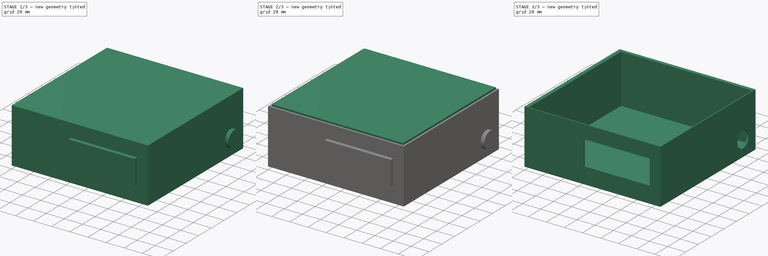
[diagram: build sequence overview — one tinted view per stage of 3, left to right]
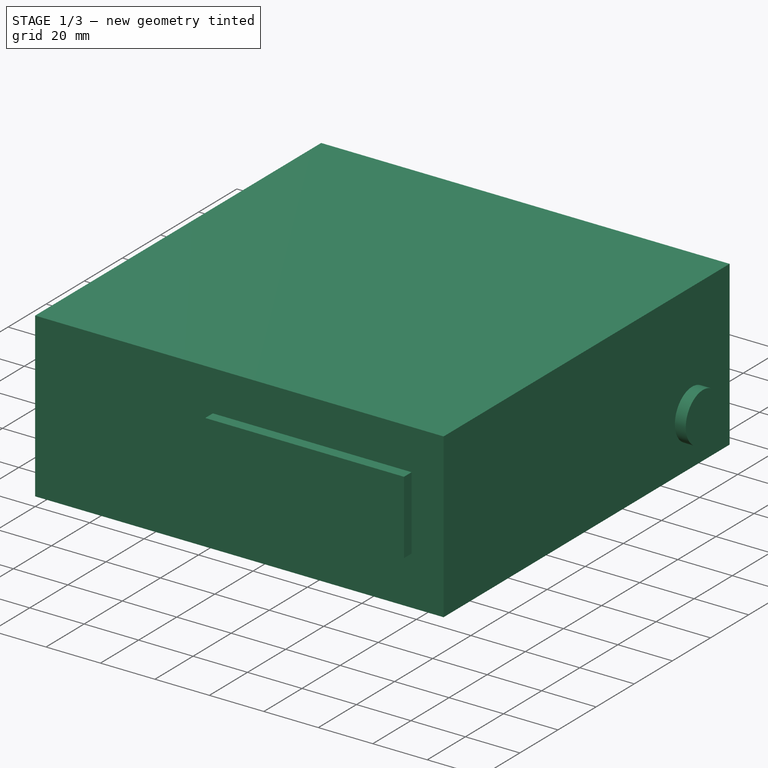
[diagram: stage 1 of 3 — iso view after this stage's code; geometry added in this stage tinted green]
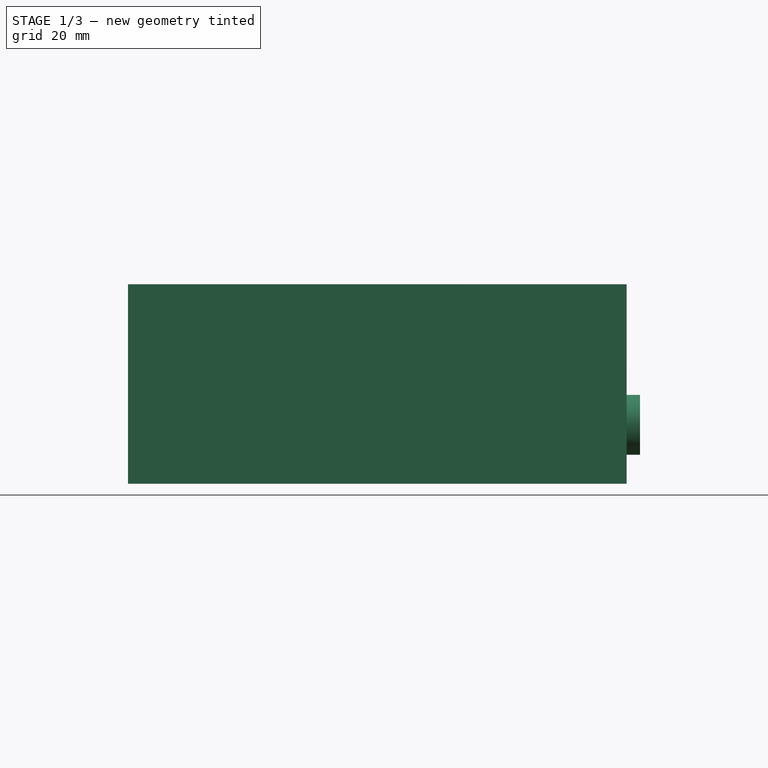
[diagram: stage 1 of 3 — front view after this stage's code; geometry added in this stage tinted green]
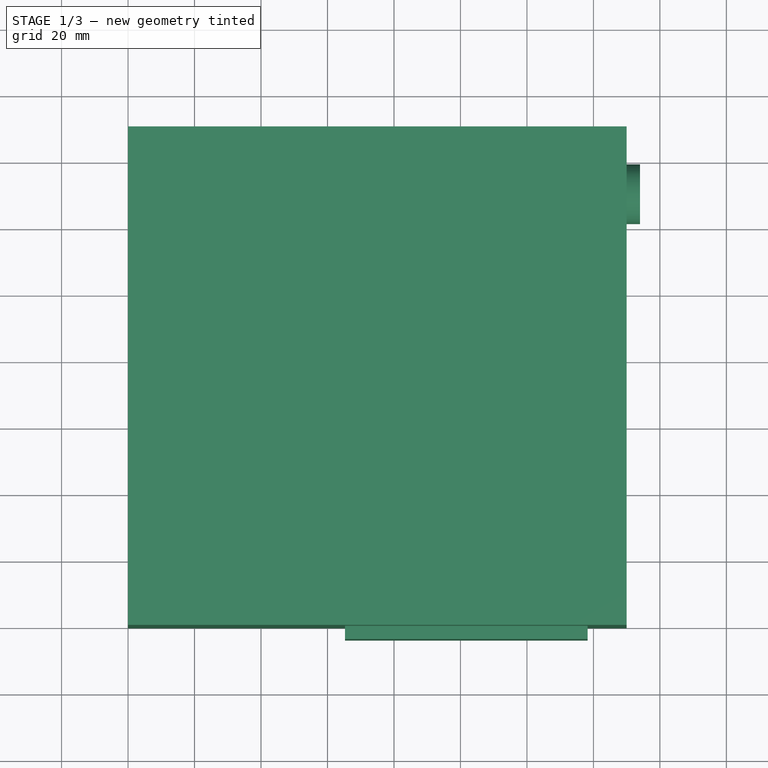
[diagram: stage 1 of 3 — top view after this stage's code; geometry added in this stage tinted green]
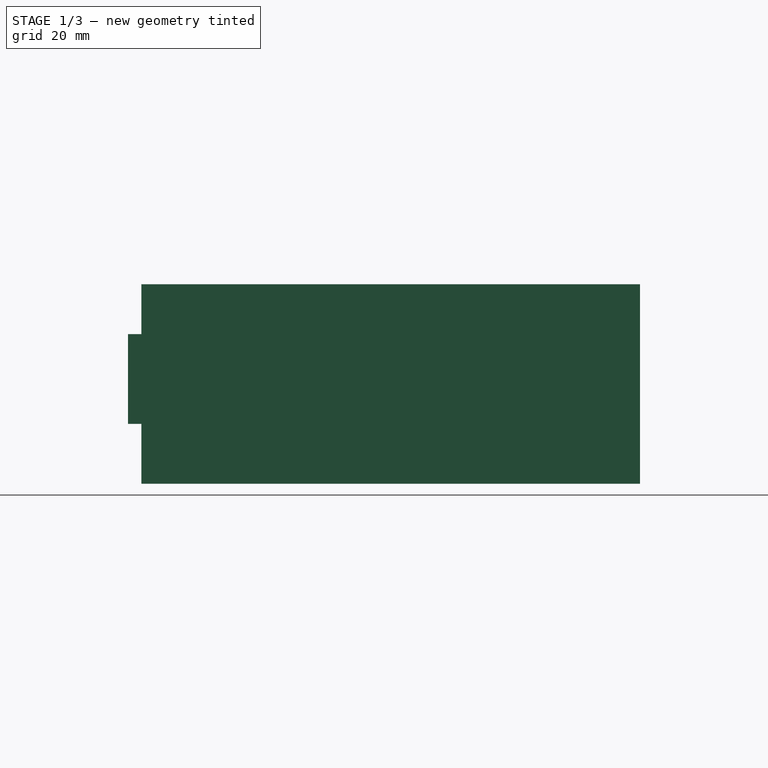
[diagram: stage 1 of 3 — right view after this stage's code; geometry added in this stage tinted green]
FCSTD DOCUMENT  (FreeCAD 0.17R13541 (Git))
Label: BaseCajaProyecto
License: All rights reserved
LicenseURL: http://en.wikipedia.org/wiki/All_rights_reserved
objects: Part::Box×2, Part::Cut×2, Sketcher::SketchObject×2, Part::Extrusion×2, Drawing::FeatureViewPart×2, Part::Fuse×1, Part::Chamfer×1, Drawing::FeaturePage×1
note: 10 computed .brp shape members not serialized (recipe doc carries the construction recipe); baked Part::Feature solids carry a one-line shape summary decoded from their .brp

FEATURE [Part::Box] Box001  label="Cubo001"
  AttacherType = Attacher::AttachEngine3D
  Height = 60
  Length = 150
  Width = 150
FEATURE [Sketcher::SketchObject] Sketch001
  MapMode = 5
  Placement = pos=(150,0,0) rot=(0.57735,0.57735,0.57735;2.0944rad)
  sketch-geometry (1):
    g0: Circle CenterX=129.312 CenterY=12.7282 CenterZ=0 NormalX=0 NormalY=0 NormalZ=1 AngleXU=0 Radius=9
  constraints (1):
    c: Radius(g0) = 9
FEATURE [Part::Extrusion] Extrude001  label="ConexionAlimentacion"
  Base = -> Sketch001
  Dir = (1,0,0)
  DirMode = 2
  FaceMakerClass = Part::FaceMakerBullseye
  LengthFwd = 10
  LengthRev = 0
  Placement = pos=(-6,1,5) rot=(0,0,1;0rad)
  Solid = true
  Symmetric = false
FEATURE [Sketcher::SketchObject] Sketch
  MapMode = 5
  Placement = pos=(0,0,0) rot=(1,0,0;1.5708rad)
  sketch-geometry (4):
    g0: LineSegment StartX=65.2534 StartY=44.9971 StartZ=0 EndX=138.253 EndY=44.9971 EndZ=0
    g1: LineSegment StartX=138.253 StartY=44.9971 StartZ=0 EndX=138.253 EndY=17.9971 EndZ=0
    g2: LineSegment StartX=138.253 StartY=17.9971 StartZ=0 EndX=65.2534 EndY=17.9971 EndZ=0
    g3: LineSegment StartX=65.2534 StartY=17.9971 StartZ=0 EndX=65.2534 EndY=44.9971 EndZ=0
  constraints (10):
    c: Coincident(g0,g1)
    c: Coincident(g1,g2)
    c: Coincident(g2,g3)
    c: Coincident(g3,g0)
    c: Horizontal(g0)
    c: Horizontal(g2)
    c: Vertical(g1)
    c: Vertical(g3)
    c: DistanceX(g2,g2) = 73
    c: DistanceY(g1,g1) = 27
FEATURE [Part::Extrusion] Extrude  label="LCD"
  Base = -> Sketch
  Dir = (0,-1,0)
  DirMode = 2
  FaceMakerClass = Part::FaceMakerBullseye
  LengthFwd = 10
  LengthRev = 0
  Placement = pos=(0,6,0) rot=(0,0,1;0rad)
  Solid = true
  Symmetric = false
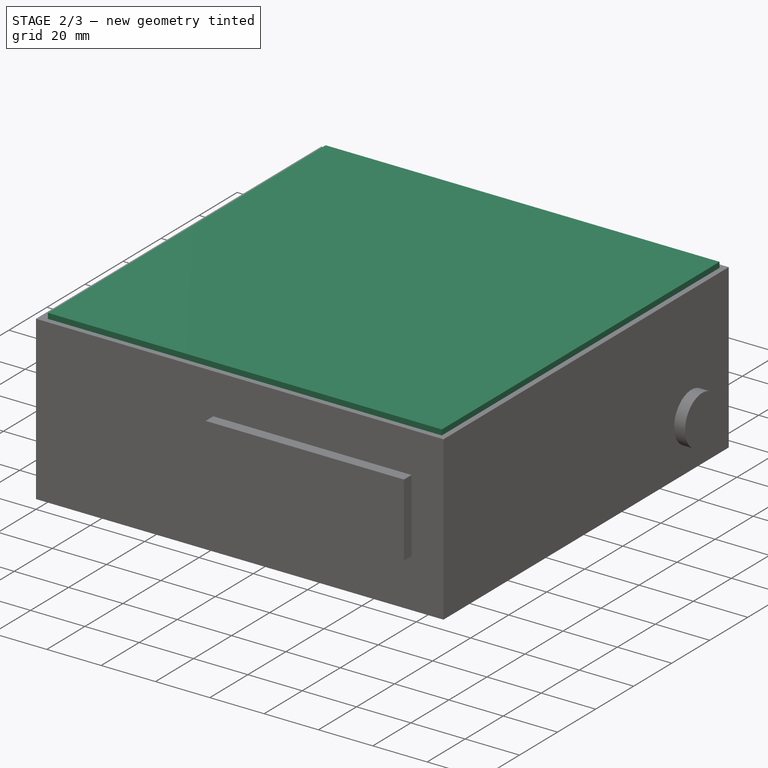
[diagram: stage 2 of 3 — iso view after this stage's code; geometry added in this stage tinted green]
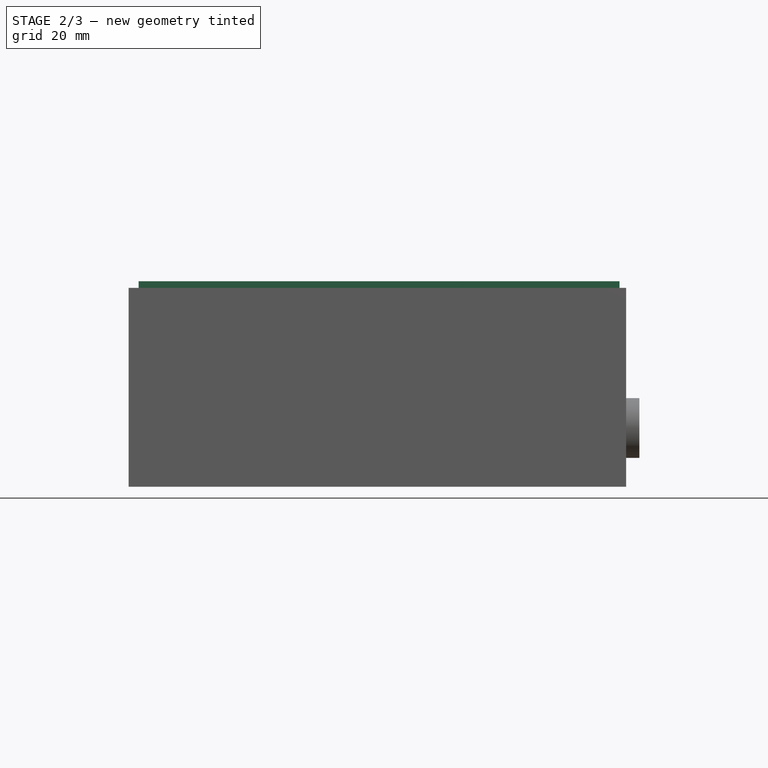
[diagram: stage 2 of 3 — front view after this stage's code; geometry added in this stage tinted green]
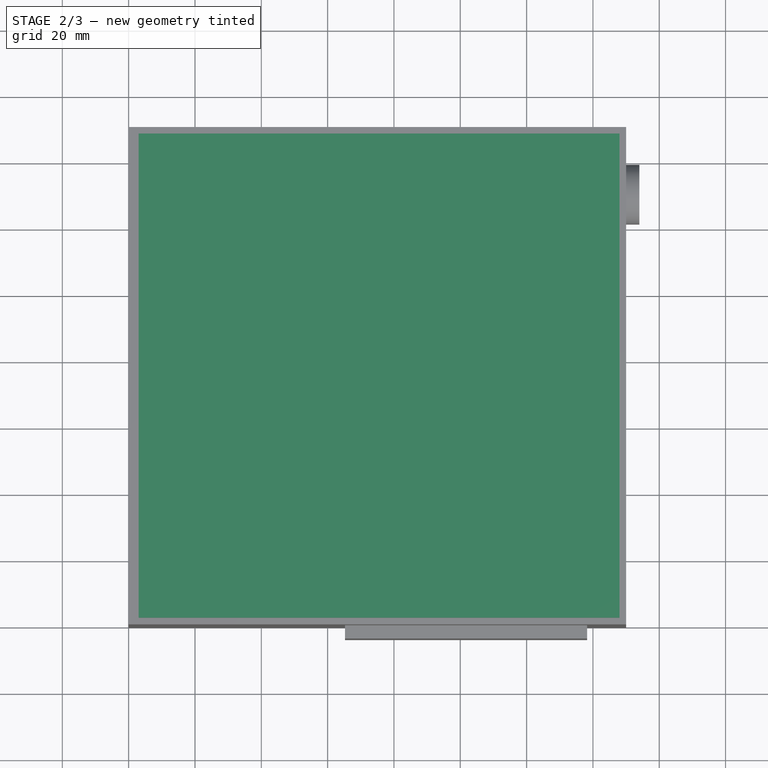
[diagram: stage 2 of 3 — top view after this stage's code; geometry added in this stage tinted green]
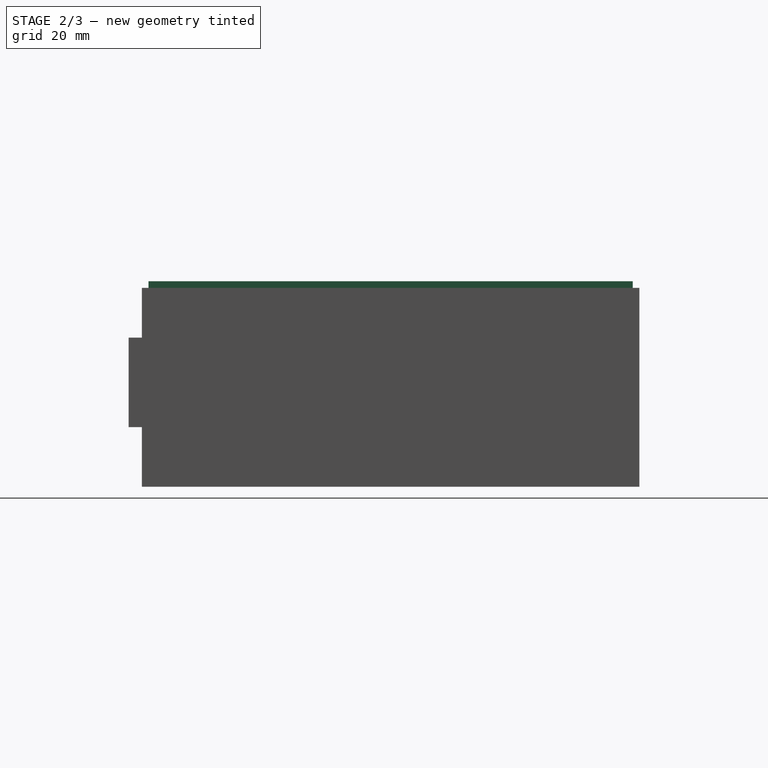
[diagram: stage 2 of 3 — right view after this stage's code; geometry added in this stage tinted green]
FEATURE [Part::Box] Box  label="Cubo"
  AttacherType = Attacher::AttachEngine3D
  Height = 57
  Length = 145
  Placement = pos=(3,2,5) rot=(0,0,1;0rad)
  Width = 146
FEATURE [Part::Fuse] Fusion
  Base = -> Extrude
  Tool = -> Extrude001
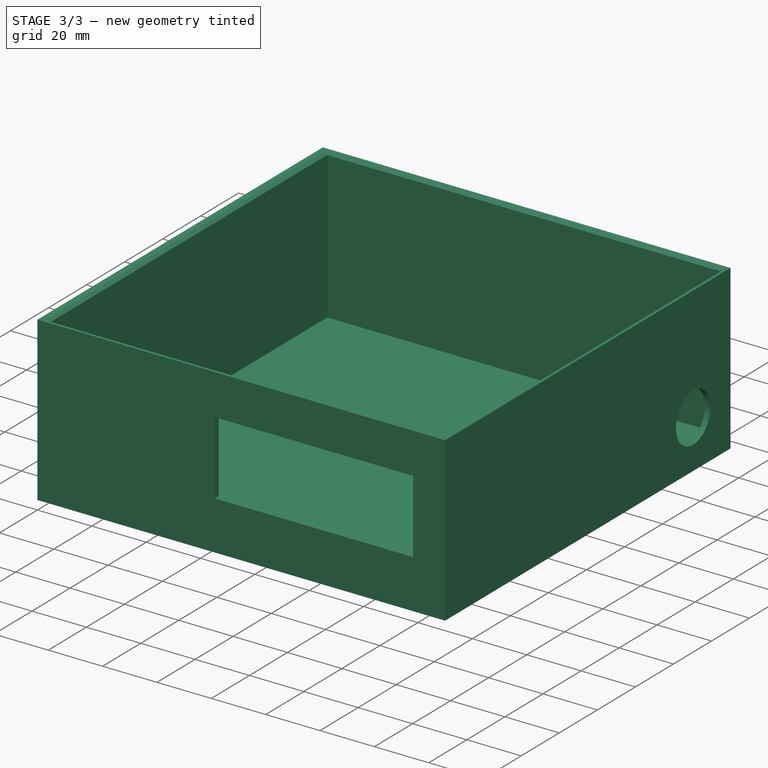
[diagram: stage 3 of 3 — iso view after this stage's code; geometry added in this stage tinted green]
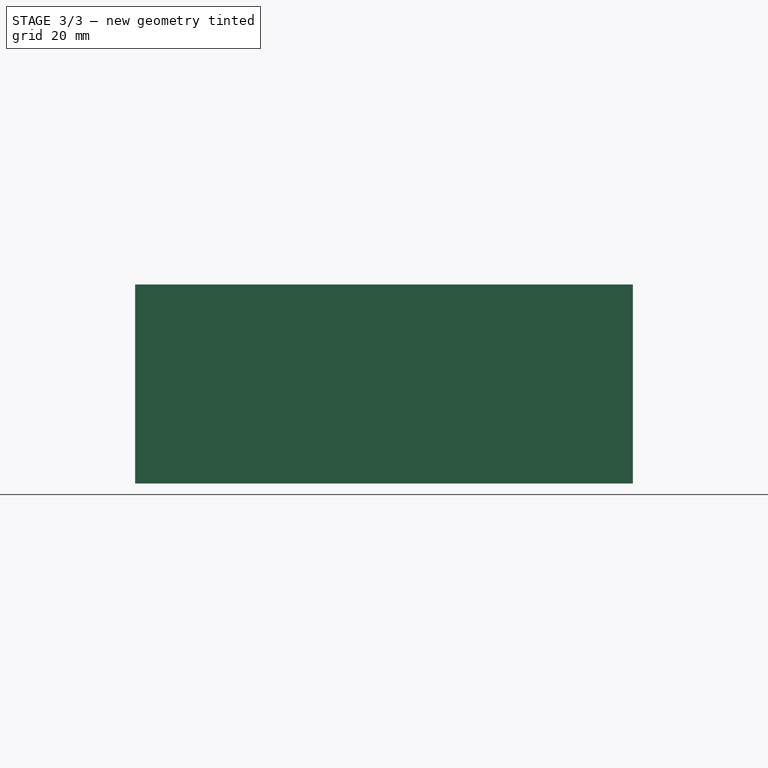
[diagram: stage 3 of 3 — front view after this stage's code; geometry added in this stage tinted green]
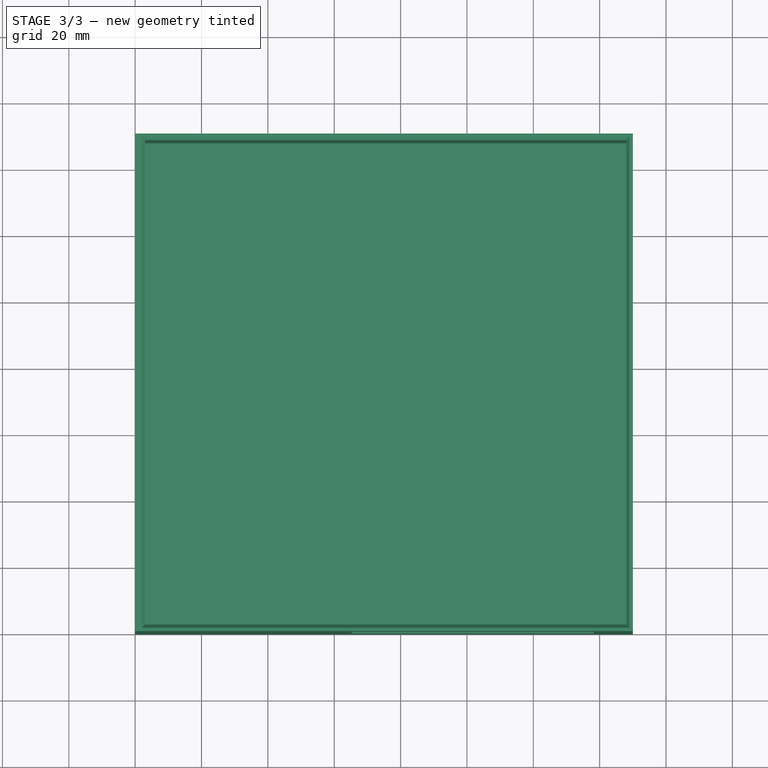
[diagram: stage 3 of 3 — top view after this stage's code; geometry added in this stage tinted green]
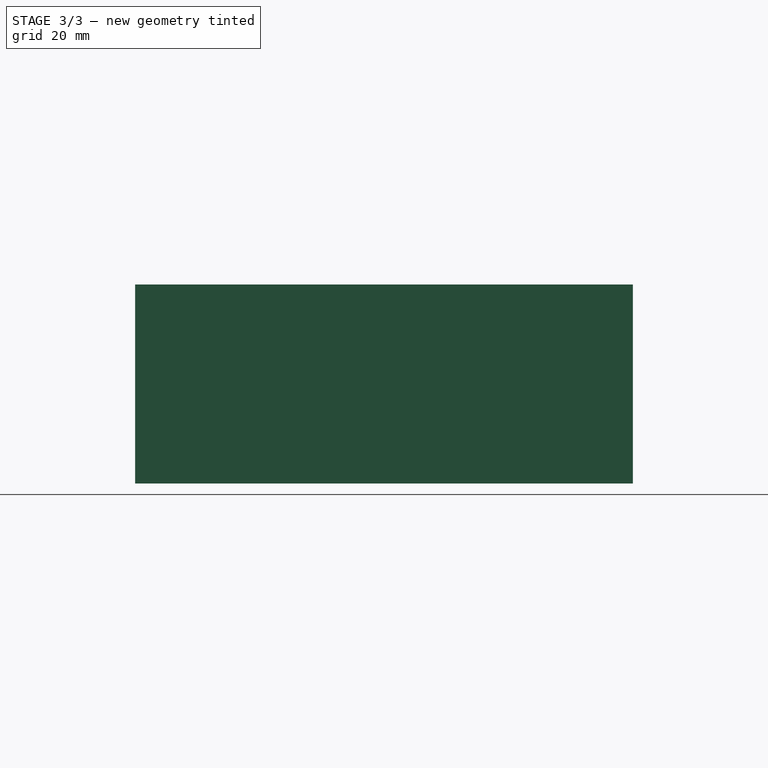
[diagram: stage 3 of 3 — right view after this stage's code; geometry added in this stage tinted green]
FEATURE [Part::Cut] Cut
  Base = -> Box001
  Tool = -> Box
FEATURE [Part::Cut] Cut001  label="BaseCaja001"
  Base = -> Cut
  Tool = -> Fusion
FEATURE [Part::Chamfer] Chamfer001  label="BaseCaja"
  Base = -> Cut001
  Edges = 4 edges r=1: [Edge14,Edge15,Edge16,Edge17]
FEATURE [Drawing::FeatureViewPart] Ortho002  label="Ortho_1_1"
  Direction = (0.68125,-0.68125,0.267949)
  HiddenWidth = 0.15
  LineWidth = 0.35
  Rotation = 180
  Scale = 0.7
  ShowHiddenLines = false
  ShowSmoothLines = false
  Source = -> Chamfer001
  Tolerance = 0.05
  ViewResult = <blob: 2308 chars omitted>
  Visible = false
  X = 227.42
  Y = 127.565
FEATURE [Drawing::FeatureViewPart] Ortho  label="Ortho_0_0"
  Direction = (0,-1,0)
  HiddenWidth = 0.15
  LineWidth = 0.35
  Rotation = 90
  ShowHiddenLines = false
  ShowSmoothLines = false
  Source = -> Chamfer001
  Tolerance = 0.05
  ViewResult = <g id="Ortho_0_0"\n   transform="rotate(90,43.3333,264.667) translate(43.3333,264.667) scale(1,1)"\n  >\n<g   fill="none"\n   stroke="rgb(0, 0, 0)"\n   stroke-linecap="butt"\n   stroke-linejoin="miter"\n   stroke-width="0.350000"\n   transform="scale(1,-1)"\n  >\n<path id= "1" d=" M -60 0 L -60 150 " />\n<path id= "2" d=" M 0 0 L -60 0 " />\n<path id= "3" d=" M 0 0 L 0 150 " />\n<path id= "4" d=" M 0 150 L -60 150 " />\n<path id= "5" d=" M -44.9971 65.2534 L -44.9971 138.253 " />\n<path id= "6" d=" M -44.9971 138.253 L -17.9971 138.253 " />\n<path id= "7" d=" M -17.9971 138.253 L -17.9971 65.2534 " />\n<path id= "8" d=" M -17.9971 65.2534 L -44.9971 65.2534 " />\n</g>\n</g>
  Visible = false
  X = 43.3333
  Y = 264.667
FEATURE [Drawing::FeaturePage] Page
  EditableTexts = AUTHOR NAME | CREATION DATE | SUPERVISOR NAME | CHECK DATE | SCALE | WEIGHT | NUMBER | SHEET | TITLE | SUBTITLE
  Group = -> [Ortho,Ortho002]
  Template = C:/Program Files/FreeCAD 0.17/data/Mod/Drawing/Templates/A3_Landscape.svg
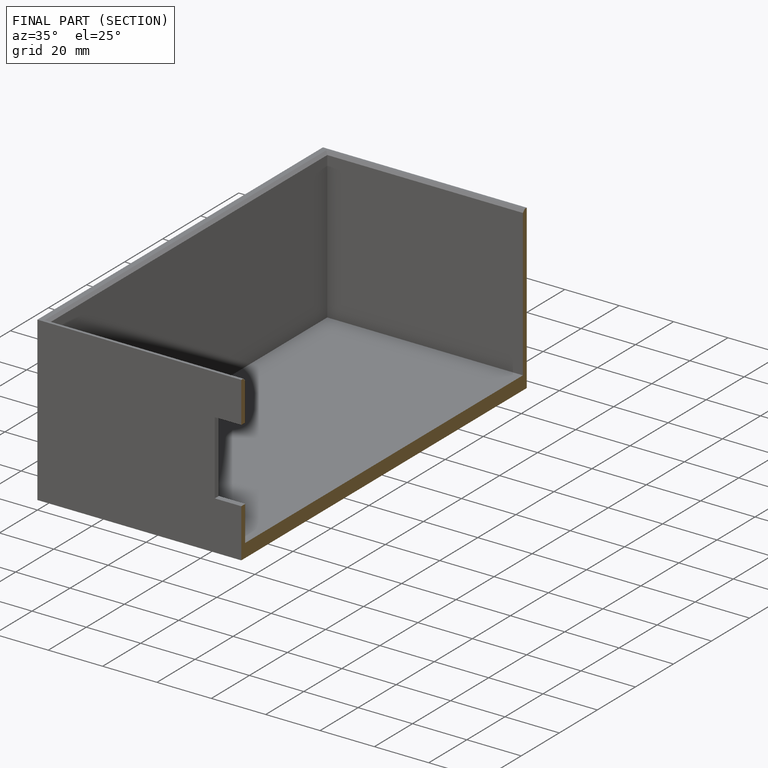
[diagram: finished part — half-section view (interior)]
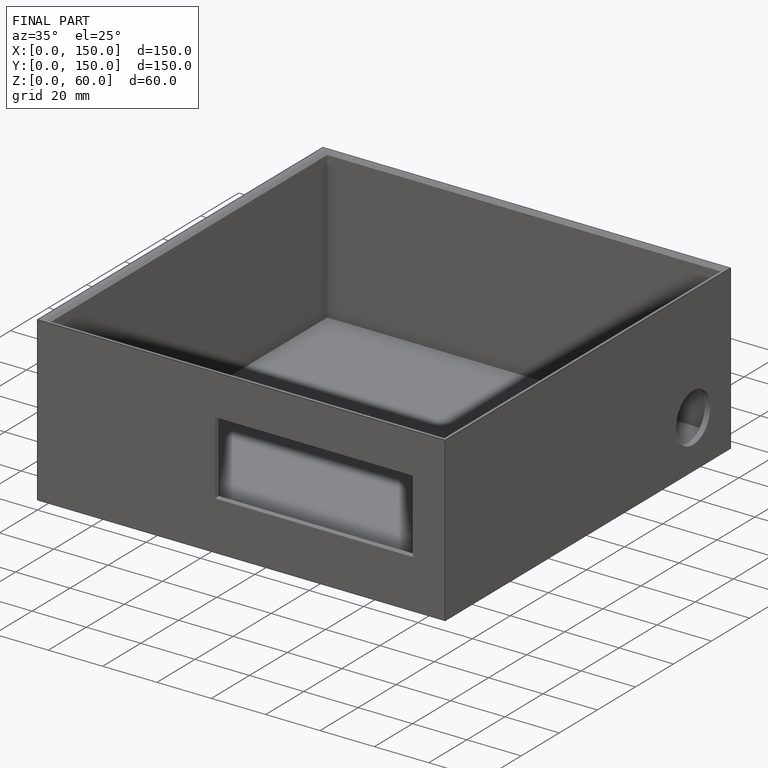
[diagram: finished part — iso view with bounding-box wireframe]
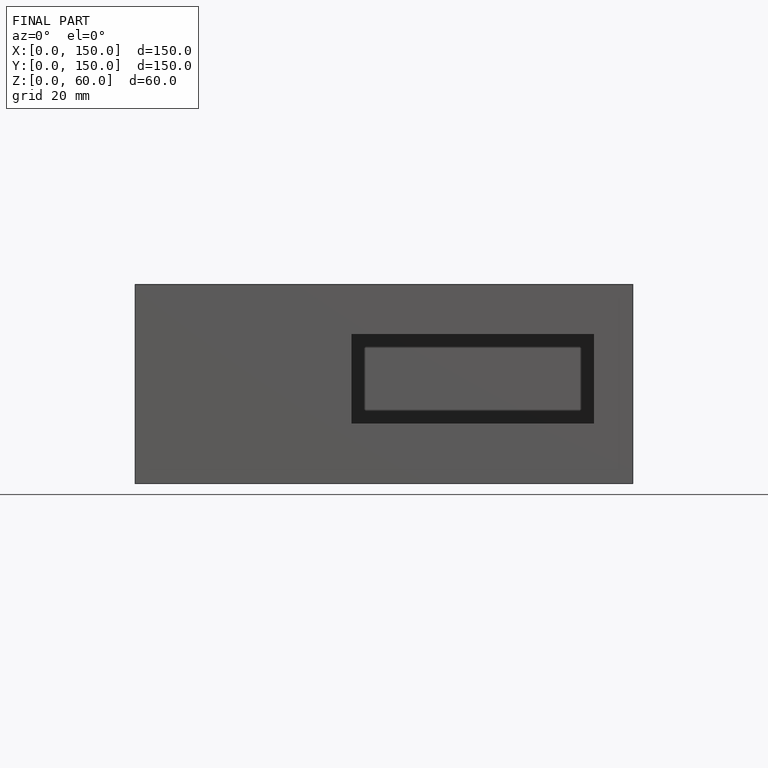
[diagram: finished part — front view with bounding-box wireframe]
